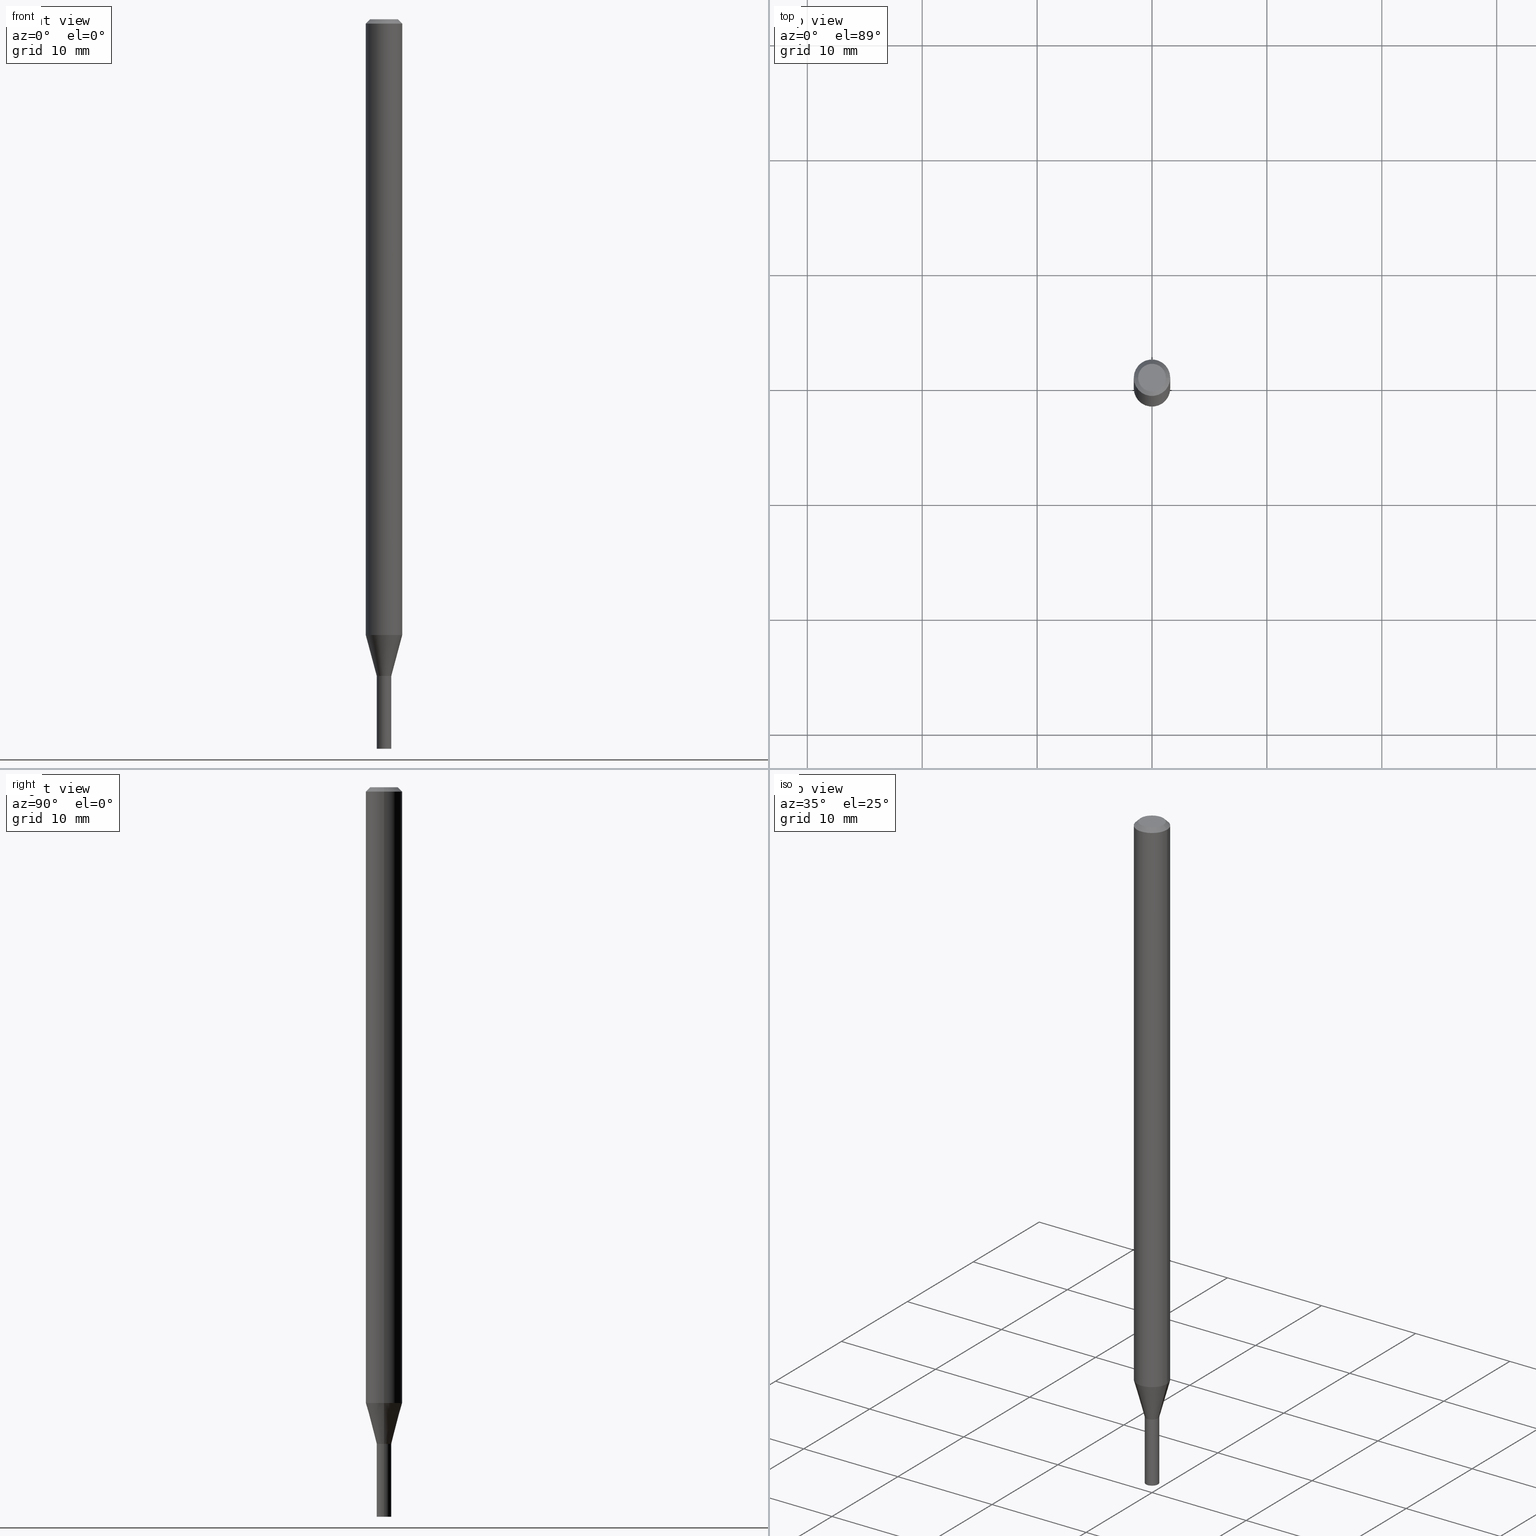
[diagram: canonical four-view strip — front | top / right | iso, engineering-drawing reading convention]
A machine part, canonical four-view strip (front | top / right | iso — engineering-drawing reading convention). The complete STEP part file that produces these views, byte-faithful:
ISO-10303-21;
HEADER;
FILE_DESCRIPTION (( 'STEP AP203' ),
    '1' );
FILE_NAME ('01237.STEP',
    '2024-03-20T00:23:48',
    ( '' ),
    ( '' ),
    'SwSTEP 2.0',
    'SolidWorks 2023',
    '' );
FILE_SCHEMA (( 'CONFIG_CONTROL_DESIGN' ));
ENDSEC;

DATA;
#1 = AXIS2_PLACEMENT_3D ( 'NONE', #237, #269, #163 ) ;
#2 = EDGE_LOOP ( 'NONE', ( #455, #438, #147, #79 ) ) ;
#3 = DIRECTION ( 'NONE',  ( 1.000000000000000000, -6.982962677686276966E-15, 0.000000000000000000 ) ) ;
#4 = PERSON_AND_ORGANIZATION ( #290, #232 ) ;
#5 = CARTESIAN_POINT ( 'NONE',  ( 3.316907271900976096E-16, 0.04749999999999999362, 2.977901162055994392E-16 ) ) ;
#6 = ORIENTED_EDGE ( 'NONE', *, *, #277, .T. ) ;
#7 = DIRECTION ( 'NONE',  ( -2.445468806185136597E-29, 3.491481338843145583E-15, 1.000000000000000000 ) ) ;
#8 = CIRCLE ( 'NONE', #353, 0.04749999999999999362 ) ;
#9 = EDGE_CURVE ( 'NONE', #179, #263, #150, .T. ) ;
#10 = ORIENTED_EDGE ( 'NONE', *, *, #114, .T. ) ;
#11 = AXIS2_PLACEMENT_3D ( 'NONE', #255, #287, #69 ) ;
#12 = CARTESIAN_POINT ( 'NONE',  ( 0.000000000000000000, 0.000000000000000000, 0.000000000000000000 ) ) ;
#13 = CARTESIAN_POINT ( 'NONE',  ( 5.502304813916557343E-29, -7.855833012397078448E-15, -2.250000000000000000 ) ) ;
#14 = EDGE_LOOP ( 'NONE', ( #49, #446 ) ) ;
#15 = CARTESIAN_POINT ( 'NONE',  ( 5.502304813916558464E-29, -7.855833012397078448E-15, -2.250000000000000444 ) ) ;
#16 = ORIENTED_EDGE ( 'NONE', *, *, #452, .F. ) ;
#17 = AXIS2_PLACEMENT_3D ( 'NONE', #302, #382, #234 ) ;
#18 = LOCAL_TIME ( 20, 23, 48.00000000000000000, #405 ) ;
#19 = DIRECTION ( 'NONE',  ( -2.445468806185136597E-29, 3.491481338843145583E-15, 1.000000000000000000 ) ) ;
#20 = EDGE_CURVE ( 'NONE', #242, #369, #213, .T. ) ;
#21 = ORIENTED_EDGE ( 'NONE', *, *, #457, .F. ) ;
#22 =( NAMED_UNIT ( * ) PLANE_ANGLE_UNIT ( ) SI_UNIT ( $, .RADIAN. ) );
#23 = DIRECTION ( 'NONE',  ( 1.000000000000000000, -6.982962677686262766E-15, 0.000000000000000000 ) ) ;
#24 = VERTEX_POINT ( 'NONE', #415 ) ;
#25 = DIRECTION ( 'NONE',  ( 0.2588190451025209615, 1.565188264969624926E-15, 0.9659258262890682012 ) ) ;
#26 = EDGE_CURVE ( 'NONE', #24, #416, #222, .T. ) ;
#27 = MANIFOLD_SOLID_BREP ( 'Body-Move/Copy2[1]', #91 ) ;
#28 = CARTESIAN_POINT ( 'NONE',  ( 0.000000000000000000, 0.000000000000000000, 0.000000000000000000 ) ) ;
#29 = FACE_OUTER_BOUND ( 'NONE', #294, .T. ) ;
#30 = DIRECTION ( 'NONE',  ( -2.445468806185136877E-29, 3.491481338843145188E-15, 1.000000000000000000 ) ) ;
#31 = AXIS2_PLACEMENT_3D ( 'NONE', #313, #456, #176 ) ;
#32 = CIRCLE ( 'NONE', #254, 0.06250000000000000000 ) ;
#33 = APPLICATION_PROTOCOL_DEFINITION ( 'international standard', 'config_control_design', 1994, #399 ) ;
#34 = ORIENTED_EDGE ( 'NONE', *, *, #137, .T. ) ;
#35 = DIRECTION ( 'NONE',  ( 1.000000000000000000, -6.982962677686266711E-15, 0.000000000000000000 ) ) ;
#36 = ADVANCED_FACE ( 'NONE', ( #160 ), #56, .T. ) ;
#37 = SECURITY_CLASSIFICATION_LEVEL ( 'unclassified' ) ;
#38 = CIRCLE ( 'NONE', #381, 0.06250000000000000000 ) ;
#39 = EDGE_LOOP ( 'NONE', ( #119, #354, #392, #186 ) ) ;
#40 = AXIS2_PLACEMENT_3D ( 'NONE', #426, #109, #249 ) ;
#41 = PERSON_AND_ORGANIZATION ( #290, #232 ) ;
#42 = ORIENTED_EDGE ( 'NONE', *, *, #305, .T. ) ;
#43 = PRODUCT_RELATED_PRODUCT_CATEGORY ( 'detail', '', ( #322 ) ) ;
#44 = AXIS2_PLACEMENT_3D ( 'NONE', #317, #210, #326 ) ;
#45 = DIRECTION ( 'NONE',  ( 1.000000000000000000, -6.982962677686272233E-15, 0.000000000000000000 ) ) ;
#46 = CIRCLE ( 'NONE', #344, 0.02500000000000019915 ) ;
#47 = PERSON_AND_ORGANIZATION_ROLE ( 'design_owner' ) ;
#48 = APPROVAL_PERSON_ORGANIZATION ( #368, #192, #265 ) ;
#49 = ORIENTED_EDGE ( 'NONE', *, *, #137, .F. ) ;
#50 = DIMENSIONAL_EXPONENTS ( 1.000000000000000000, 0.000000000000000000, 0.000000000000000000, 0.000000000000000000, 0.000000000000000000, 0.000000000000000000, 0.000000000000000000 ) ;
#51 = DIRECTION ( 'NONE',  ( -2.445468806185136877E-29, 3.491481338843145188E-15, 1.000000000000000000 ) ) ;
#52 = ORIENTED_EDGE ( 'NONE', *, *, #26, .T. ) ;
#53 = FACE_OUTER_BOUND ( 'NONE', #164, .T. ) ;
#54 = CC_DESIGN_PERSON_AND_ORGANIZATION_ASSIGNMENT ( #41, #118, ( #371 ) ) ;
#55 = FACE_OUTER_BOUND ( 'NONE', #178, .T. ) ;
#56 = CYLINDRICAL_SURFACE ( 'NONE', #146, 0.06250000000000000000 ) ;
#57 = CARTESIAN_POINT ( 'NONE',  ( -0.02500000000000019915, -7.676451587787630163E-15, -2.249500000000000277 ) ) ;
#58 = APPROVAL_DATE_TIME ( #374, #192 ) ;
#59 = PRODUCT_DEFINITION ( 'UNKNOWN', '', #371, #138 ) ;
#60 = DIRECTION ( 'NONE',  ( 1.000000000000000000, -6.982962677686254878E-15, 0.000000000000000000 ) ) ;
#61 = ORIENTED_EDGE ( 'NONE', *, *, #305, .F. ) ;
#62 = CONICAL_SURFACE ( 'NONE', #17, 0.02500000000000020609, 0.2617993877991496299 ) ;
#63 = DIRECTION ( 'NONE',  ( -0.2588190451025209615, 5.211531920934547097E-15, 0.9659258262890682012 ) ) ;
#64 = CARTESIAN_POINT ( 'NONE',  ( 5.502304813916557343E-29, -7.855833012397078448E-15, -2.250000000000000000 ) ) ;
#65 = FACE_OUTER_BOUND ( 'NONE', #205, .T. ) ;
#66 = FACE_OUTER_BOUND ( 'NONE', #347, .T. ) ;
#67 = DIRECTION ( 'NONE',  ( 1.000000000000000000, -6.982962677686254878E-15, 0.000000000000000000 ) ) ;
#68 = ORIENTED_EDGE ( 'NONE', *, *, #73, .T. ) ;
#69 = DIRECTION ( 'NONE',  ( 1.000000000000000000, -6.982962677686275388E-15, 0.000000000000000000 ) ) ;
#70 = AXIS2_PLACEMENT_3D ( 'NONE', #244, #284, #67 ) ;
#71 = DIRECTION ( 'NONE',  ( -2.445468806185136597E-29, 3.491481338843145583E-15, 1.000000000000000000 ) ) ;
#72 = ADVANCED_FACE ( 'NONE', ( #120 ), #62, .T. ) ;
#73 = EDGE_CURVE ( 'NONE', #416, #24, #8, .T. ) ;
#74 = ORIENTED_EDGE ( 'NONE', *, *, #441, .T. ) ;
#75 = VECTOR ( 'NONE', #202, 39.37007874015748143 ) ;
#76 = ADVANCED_FACE ( 'NONE', ( #348 ), #346, .T. ) ;
#77 = CALENDAR_DATE ( 2024, 19, 3 ) ;
#78 = ADVANCED_FACE ( 'NONE', ( #55 ), #412, .F. ) ;
#79 = ORIENTED_EDGE ( 'NONE', *, *, #409, .F. ) ;
#80 = DATE_TIME_ROLE ( 'creation_date' ) ;
#81 = ORIENTED_EDGE ( 'NONE', *, *, #225, .T. ) ;
#82 = DIRECTION ( 'NONE',  ( 2.445468806185136597E-29, -3.491481338843145583E-15, -1.000000000000000000 ) ) ;
#83 = CIRCLE ( 'NONE', #323, 0.02500000000000000139 ) ;
#84 = ORIENTED_EDGE ( 'NONE', *, *, #26, .F. ) ;
#85 = VERTEX_POINT ( 'NONE', #448 ) ;
#86 = EDGE_CURVE ( 'NONE', #369, #115, #127, .T. ) ;
#87 = DIRECTION ( 'NONE',  ( 1.000000000000000000, -6.982962677686265922E-15, 4.876176775795935793E-29 ) ) ;
#88 = DIRECTION ( 'NONE',  ( -2.445468806185136597E-29, 3.491481338843145583E-15, 1.000000000000000000 ) ) ;
#89 = DIRECTION ( 'NONE',  ( -2.445468806185136877E-29, 3.491481338843145188E-15, 1.000000000000000000 ) ) ;
#90 = PRODUCT_DEFINITION_SHAPE ( 'NONE', 'NONE',  #59 ) ;
#91 = CLOSED_SHELL ( 'NONE', ( #299, #122, #162, #431 ) ) ;
#92 = VECTOR ( 'NONE', #291, 39.37007874015748143 ) ;
#93 = FACE_OUTER_BOUND ( 'NONE', #218, .T. ) ;
#94 = ORIENTED_EDGE ( 'NONE', *, *, #214, .T. ) ;
#95 = DIRECTION ( 'NONE',  ( -2.445468806185136597E-29, 3.491481338843145583E-15, 1.000000000000000000 ) ) ;
#96 = EDGE_CURVE ( 'NONE', #263, #248, #442, .T. ) ;
#97 = FACE_OUTER_BOUND ( 'NONE', #420, .T. ) ;
#98 = EDGE_LOOP ( 'NONE', ( #61, #306 ) ) ;
#99 = DIRECTION ( 'NONE',  ( -2.445468806185136877E-29, 3.491481338843145188E-15, 1.000000000000000000 ) ) ;
#100 = AXIS2_PLACEMENT_3D ( 'NONE', #341, #158, #307 ) ;
#101 = CARTESIAN_POINT ( 'NONE',  ( 0.02500000000000020609, -8.030407079339236694E-15, -2.250000000000000000 ) ) ;
#102 = ORIENTED_EDGE ( 'NONE', *, *, #203, .T. ) ;
#103 = CARTESIAN_POINT ( 'NONE',  ( -0.02500000000000000139, 1.776356839400250563E-16, -1.229733772563726656E-30 ) ) ;
#104 = CARTESIAN_POINT ( 'NONE',  ( 5.502304813916558464E-29, -7.855833012397078448E-15, -2.250000000000000444 ) ) ;
#105 = CARTESIAN_POINT ( 'NONE',  ( 0.06250000000000000000, -4.811533449433679005E-16, -0.01499999999999999944 ) ) ;
#106 = CARTESIAN_POINT ( 'NONE',  ( 0.02500000000000020609, -8.030407079339236694E-15, -2.250000000000000000 ) ) ;
#107 = AXIS2_PLACEMENT_3D ( 'NONE', #247, #325, #131 ) ;
#108 = AXIS2_PLACEMENT_3D ( 'NONE', #28, #95, #200 ) ;
#109 = DIRECTION ( 'NONE',  ( 2.438088387897960049E-29, -3.491481338843145188E-15, -1.000000000000000000 ) ) ;
#110 = EDGE_CURVE ( 'NONE', #248, #236, #46, .T. ) ;
#111 = APPLICATION_CONTEXT ( 'configuration controlled 3d designs of mechanical parts and assemblies' ) ;
#112 = ORIENTED_EDGE ( 'NONE', *, *, #86, .F. ) ;
#113 = COORDINATED_UNIVERSAL_TIME_OFFSET ( 5, 0, .BEHIND. ) ;
#114 = EDGE_CURVE ( 'NONE', #135, #183, #129, .T. ) ;
#115 = VERTEX_POINT ( 'NONE', #439 ) ;
#116 = APPROVAL_ROLE ( '' ) ;
#117 = CC_DESIGN_PERSON_AND_ORGANIZATION_ASSIGNMENT ( #297, #260, ( #429 ) ) ;
#118 = PERSON_AND_ORGANIZATION_ROLE ( 'creator' ) ;
#119 = ORIENTED_EDGE ( 'NONE', *, *, #319, .F. ) ;
#120 = FACE_OUTER_BOUND ( 'NONE', #2, .T. ) ;
#121 = APPROVAL_STATUS ( 'not_yet_approved' ) ;
#122 = ADVANCED_FACE ( 'NONE', ( #410 ), #123, .F. ) ;
#123 = PLANE ( 'NONE',  #466 ) ;
#124 = CIRCLE ( 'NONE', #444, 0.02500000000000020609 ) ;
#125 = DIRECTION ( 'NONE',  ( 2.438088387897960049E-29, -3.491481338843145188E-15, -1.000000000000000000 ) ) ;
#126 = CARTESIAN_POINT ( 'NONE',  ( 0.02500000000000000139, -1.745740669421566924E-16, 1.219044193948984123E-30 ) ) ;
#127 = LINE ( 'NONE', #126, #428 ) ;
#128 = ADVANCED_FACE ( 'NONE', ( #264 ), #267, .T. ) ;
#129 = CIRCLE ( 'NONE', #389, 0.02450000000000000441 ) ;
#130 = AXIS2_PLACEMENT_3D ( 'NONE', #152, #256, #433 ) ;
#131 = DIRECTION ( 'NONE',  ( 1.000000000000000000, -6.982962677686262766E-15, 0.000000000000000000 ) ) ;
#132 = ORIENTED_EDGE ( 'NONE', *, *, #372, .F. ) ;
#133 = CARTESIAN_POINT ( 'NONE',  ( -0.02500000000000000139, -8.114632495812445702E-15, -2.250000000000000000 ) ) ;
#134 = CARTESIAN_POINT ( 'NONE',  ( 0.02500000000000019915, -8.028661338669814401E-15, -2.249500000000000277 ) ) ;
#135 = VERTEX_POINT ( 'NONE', #231 ) ;
#136 = LINE ( 'NONE', #103, #92 ) ;
#137 = EDGE_CURVE ( 'NONE', #183, #135, #285, .T. ) ;
#138 = DESIGN_CONTEXT ( 'detailed design', #111, 'design' ) ;
#139 = CARTESIAN_POINT ( 'NONE',  ( 5.502304813916558464E-29, -7.855833012397078448E-15, -2.250000000000000444 ) ) ;
#140 = VECTOR ( 'NONE', #25, 39.37007874015748143 ) ;
#141 = DIRECTION ( 'NONE',  ( -2.445468806185136597E-29, 3.491481338843145583E-15, 1.000000000000000000 ) ) ;
#142 = UNCERTAINTY_MEASURE_WITH_UNIT (LENGTH_MEASURE( 1.000000000000000082E-05 ), #358, 'distance_accuracy_value', 'NONE');
#143 = DIRECTION ( 'NONE',  ( 1.000000000000000000, -6.982962677686272233E-15, 0.000000000000000000 ) ) ;
#144 = DIRECTION ( 'NONE',  ( 0.7071067811865257013, -7.319954787623181892E-15, -0.7071067811865692221 ) ) ;
#145 = CC_DESIGN_DATE_AND_TIME_ASSIGNMENT ( #303, #80, ( #59 ) ) ;
#146 = AXIS2_PLACEMENT_3D ( 'NONE', #411, #309, #154 ) ;
#147 = ORIENTED_EDGE ( 'NONE', *, *, #225, .F. ) ;
#148 = APPROVAL_STATUS ( 'not_yet_approved' ) ;
#149 = CC_DESIGN_APPROVAL ( #235, ( #371 ) ) ;
#150 = CIRCLE ( 'NONE', #298, 0.02500000000000020609 ) ;
#151 = LOCAL_TIME ( 20, 23, 48.00000000000000000, #113 ) ;
#152 = CARTESIAN_POINT ( 'NONE',  ( 0.000000000000000000, 0.000000000000000000, 0.000000000000000000 ) ) ;
#153 = ORIENTED_EDGE ( 'NONE', *, *, #363, .T. ) ;
#154 = DIRECTION ( 'NONE',  ( 1.000000000000000000, -6.982962677686266711E-15, 4.876176775795935793E-29 ) ) ;
#155 = CALENDAR_DATE ( 2024, 19, 3 ) ;
#156 = DIRECTION ( 'NONE',  ( -2.445468806185136597E-29, 3.491481338843145583E-15, 1.000000000000000000 ) ) ;
#157 = EDGE_LOOP ( 'NONE', ( #74, #6 ) ) ;
#158 = DIRECTION ( 'NONE',  ( -2.445468806185136597E-29, 3.491481338843145583E-15, 1.000000000000000000 ) ) ;
#159 = AXIS2_PLACEMENT_3D ( 'NONE', #377, #373, #340 ) ;
#160 = FACE_OUTER_BOUND ( 'NONE', #39, .T. ) ;
#161 = CARTESIAN_POINT ( 'NONE',  ( 5.501082079513465662E-29, -7.854087271727656156E-15, -2.249500000000000277 ) ) ;
#162 = ADVANCED_FACE ( 'NONE', ( #53 ), #195, .T. ) ;
#163 = DIRECTION ( 'NONE',  ( 1.000000000000000000, -6.982962677686267499E-15, 4.852736867747366768E-29 ) ) ;
#164 = EDGE_LOOP ( 'NONE', ( #282, #308, #380, #208 ) ) ;
#165 = CARTESIAN_POINT ( 'NONE',  ( -0.02500000000000000139, -8.114632495812445702E-15, -2.500000000000000000 ) ) ;
#166 = VECTOR ( 'NONE', #144, 39.37007874015748854 ) ;
#167 = CARTESIAN_POINT ( 'NONE',  ( 0.02450000000000000441, -8.026915598000392109E-15, -2.250000000000000444 ) ) ;
#168 = ORIENTED_EDGE ( 'NONE', *, *, #96, .T. ) ;
#169 =( NAMED_UNIT ( * ) SI_UNIT ( $, .STERADIAN. ) SOLID_ANGLE_UNIT ( ) );
#170 = CARTESIAN_POINT ( 'NONE',  ( -0.06250000000000000000, -6.923104336912972739E-15, -2.110048094716168166 ) ) ;
#171 = VERTEX_POINT ( 'NONE', #391 ) ;
#172 = CARTESIAN_POINT ( 'NONE',  ( -0.06250000000000000000, 3.840629472727444916E-16, -0.01499999999999999944 ) ) ;
#173 = DIRECTION ( 'NONE',  ( -2.445468806185136597E-29, 3.491481338843145583E-15, 1.000000000000000000 ) ) ;
#174 = CONICAL_SURFACE ( 'NONE', #459, 0.02450000000000000441, 0.7853981633974697063 ) ;
#175 = VECTOR ( 'NONE', #289, 39.37007874015748143 ) ;
#176 = DIRECTION ( 'NONE',  ( 1.000000000000000000, -6.982962677686266711E-15, 4.876176775795935232E-29 ) ) ;
#177 = ADVANCED_FACE ( 'NONE', ( #93 ), #174, .T. ) ;
#178 = EDGE_LOOP ( 'NONE', ( #52, #68 ) ) ;
#179 = VERTEX_POINT ( 'NONE', #101 ) ;
#180 = LINE ( 'NONE', #246, #175 ) ;
#181 = EDGE_CURVE ( 'NONE', #24, #85, #350, .T. ) ;
#182 = COORDINATED_UNIVERSAL_TIME_OFFSET ( 5, 0, .BEHIND. ) ;
#183 = VERTEX_POINT ( 'NONE', #167 ) ;
#184 = APPROVAL_STATUS ( 'not_yet_approved' ) ;
#185 = EDGE_LOOP ( 'NONE', ( #266, #94, #432, #194 ) ) ;
#186 = ORIENTED_EDGE ( 'NONE', *, *, #203, .F. ) ;
#187 = LOCAL_TIME ( 20, 23, 48.00000000000000000, #430 ) ;
#188 = DIRECTION ( 'NONE',  ( 1.000000000000000000, -6.982962677686254878E-15, 0.000000000000000000 ) ) ;
#189 = CONICAL_SURFACE ( 'NONE', #449, 0.02450000000000000441, 0.7853981633974697063 ) ;
#190 = PERSON_AND_ORGANIZATION ( #290, #232 ) ;
#191 = ORIENTED_EDGE ( 'NONE', *, *, #319, .T. ) ;
#192 = APPROVAL ( #121, 'UNSPECIFIED' ) ;
#193 = CARTESIAN_POINT ( 'NONE',  ( 6.194428952736783458E-29, -8.613054816532157721E-15, -2.500000000000000000 ) ) ;
#194 = ORIENTED_EDGE ( 'NONE', *, *, #279, .F. ) ;
#195 = CYLINDRICAL_SURFACE ( 'NONE', #100, 0.02500000000000000139 ) ;
#196 = DIRECTION ( 'NONE',  ( 1.000000000000000000, -6.982962677686267499E-15, 4.852736867747366768E-29 ) ) ;
#197 =( GEOMETRIC_REPRESENTATION_CONTEXT ( 3 ) GLOBAL_UNCERTAINTY_ASSIGNED_CONTEXT ( ( #142 ) ) GLOBAL_UNIT_ASSIGNED_CONTEXT ( ( #358, #22, #169 ) ) REPRESENTATION_CONTEXT ( 'NONE', 'WORKASPACE' ) );
#198 = DIRECTION ( 'NONE',  ( -2.445468806185136597E-29, 3.491481338843145583E-15, 1.000000000000000000 ) ) ;
#199 = ORIENTED_EDGE ( 'NONE', *, *, #441, .F. ) ;
#200 = DIRECTION ( 'NONE',  ( 1.000000000000000000, -6.982962677686267499E-15, 4.876176775795936353E-29 ) ) ;
#201 = DIRECTION ( 'NONE',  ( 1.000000000000000000, -6.982962677686276966E-15, 0.000000000000000000 ) ) ;
#202 = DIRECTION ( 'NONE',  ( -2.445468806185136877E-29, 3.491481338843145188E-15, 1.000000000000000000 ) ) ;
#203 = EDGE_CURVE ( 'NONE', #85, #171, #314, .T. ) ;
#204 = VECTOR ( 'NONE', #51, 39.37007874015748143 ) ;
#205 = EDGE_LOOP ( 'NONE', ( #21, #10, #153, #386 ) ) ;
#206 = FACE_OUTER_BOUND ( 'NONE', #185, .T. ) ;
#207 = LINE ( 'NONE', #356, #345 ) ;
#208 = ORIENTED_EDGE ( 'NONE', *, *, #277, .F. ) ;
#209 = PLANE ( 'NONE',  #245 ) ;
#210 = DIRECTION ( 'NONE',  ( 2.445468806185136597E-29, -3.491481338843145583E-15, -1.000000000000000000 ) ) ;
#211 = DIRECTION ( 'NONE',  ( 1.000000000000000000, -6.982962677686275388E-15, 0.000000000000000000 ) ) ;
#212 = AXIS2_PLACEMENT_3D ( 'NONE', #355, #395, #252 ) ;
#213 = CIRCLE ( 'NONE', #422, 0.02500000000000000139 ) ;
#214 = EDGE_CURVE ( 'NONE', #263, #179, #124, .T. ) ;
#215 = AXIS2_PLACEMENT_3D ( 'NONE', #161, #384, #201 ) ;
#216 = CARTESIAN_POINT ( 'NONE',  ( 0.04749999999999999362, -4.035134999187561860E-16, 9.272709596013002351E-16 ) ) ;
#217 = ADVANCED_FACE ( 'NONE', ( #385 ), #209, .F. ) ;
#218 = EDGE_LOOP ( 'NONE', ( #34, #339, #132, #332 ) ) ;
#219 = PERSON_AND_ORGANIZATION_ROLE ( 'design_supplier' ) ;
#220 = CC_DESIGN_PERSON_AND_ORGANIZATION_ASSIGNMENT ( #4, #257, ( #59 ) ) ;
#221 = APPROVAL_DATE_TIME ( #437, #235 ) ;
#222 = CIRCLE ( 'NONE', #1, 0.04749999999999999362 ) ;
#223 = CIRCLE ( 'NONE', #435, 0.02500000000000000139 ) ;
#224 = MECHANICAL_CONTEXT ( 'NONE', #399, 'mechanical' ) ;
#225 = EDGE_CURVE ( 'NONE', #226, #261, #38, .T. ) ;
#226 = VERTEX_POINT ( 'NONE', #419 ) ;
#227 = DIRECTION ( 'NONE',  ( -2.445468806185136597E-29, 3.491481338843145583E-15, 1.000000000000000000 ) ) ;
#228 = CALENDAR_DATE ( 2024, 19, 3 ) ;
#229 = EDGE_LOOP ( 'NONE', ( #42, #349, #199, #112 ) ) ;
#230 = EDGE_CURVE ( 'NONE', #226, #171, #394, .T. ) ;
#231 = CARTESIAN_POINT ( 'NONE',  ( -0.02450000000000000441, -7.679100814961742153E-15, -2.250000000000000444 ) ) ;
#232 = ORGANIZATION ( 'UNSPECIFIED', 'UNSPECIFIED', '' ) ;
#233 = DIRECTION ( 'NONE',  ( -1.000000000000000000, 6.982962677686266711E-15, 0.000000000000000000 ) ) ;
#234 = DIRECTION ( 'NONE',  ( 1.000000000000000000, -6.982962677686275388E-15, 0.000000000000000000 ) ) ;
#235 = APPROVAL ( #184, 'UNSPECIFIED' ) ;
#236 = VERTEX_POINT ( 'NONE', #134 ) ;
#237 = CARTESIAN_POINT ( 'NONE',  ( -2.267612206586331395E-44, 3.237549251499107077E-30, 9.272709596012976713E-16 ) ) ;
#238 = CIRCLE ( 'NONE', #70, 0.02500000000000000139 ) ;
#239 = VECTOR ( 'NONE', #99, 39.37007874015748143 ) ;
#240 = ORIENTED_EDGE ( 'NONE', *, *, #452, .T. ) ;
#241 = DIRECTION ( 'NONE',  ( 1.000000000000000000, -6.982962677686266711E-15, 0.000000000000000000 ) ) ;
#242 = VERTEX_POINT ( 'NONE', #165 ) ;
#243 = CARTESIAN_POINT ( 'NONE',  ( 5.160056795178769095E-29, -7.367193546763035355E-15, -2.110048094716168166 ) ) ;
#244 = CARTESIAN_POINT ( 'NONE',  ( 5.502304813916557343E-29, -7.855833012397078448E-15, -2.250000000000000000 ) ) ;
#245 = AXIS2_PLACEMENT_3D ( 'NONE', #15, #318, #359 ) ;
#246 = CARTESIAN_POINT ( 'NONE',  ( -0.02450000000000000441, -7.681750042135854143E-15, -2.250000000000000444 ) ) ;
#247 = CARTESIAN_POINT ( 'NONE',  ( 5.160056795178769095E-29, -7.367193546763035355E-15, -2.110048094716168166 ) ) ;
#248 = VERTEX_POINT ( 'NONE', #57 ) ;
#249 = DIRECTION ( 'NONE',  ( -1.000000000000000000, 6.982962677686265922E-15, -4.876176775795935793E-29 ) ) ;
#250 = DIRECTION ( 'NONE',  ( -2.445468806185136597E-29, 3.491481338843145583E-15, 1.000000000000000000 ) ) ;
#251 = ADVANCED_FACE ( 'NONE', ( #97 ), #357, .F. ) ;
#252 = DIRECTION ( 'NONE',  ( 1.000000000000000000, -6.982962677686266711E-15, 4.876176775795935232E-29 ) ) ;
#253 = CONICAL_SURFACE ( 'NONE', #44, 0.06250000000000000000, 0.7853981633974175258 ) ;
#254 = AXIS2_PLACEMENT_3D ( 'NONE', #361, #71, #35 ) ;
#255 = CARTESIAN_POINT ( 'NONE',  ( 5.502304813916557343E-29, -7.855833012397078448E-15, -2.250000000000000000 ) ) ;
#256 = DIRECTION ( 'NONE',  ( 0.000000000000000000, 0.000000000000000000, 1.000000000000000000 ) ) ;
#257 = PERSON_AND_ORGANIZATION_ROLE ( 'creator' ) ;
#258 = VECTOR ( 'NONE', #281, 39.37007874015748854 ) ;
#259 = CC_DESIGN_SECURITY_CLASSIFICATION ( #429, ( #371 ) ) ;
#260 = PERSON_AND_ORGANIZATION_ROLE ( 'classification_officer' ) ;
#261 = VERTEX_POINT ( 'NONE', #170 ) ;
#262 = PERSON_AND_ORGANIZATION ( #290, #232 ) ;
#263 = VERTEX_POINT ( 'NONE', #352 ) ;
#264 = FACE_OUTER_BOUND ( 'NONE', #300, .T. ) ;
#265 = APPROVAL_ROLE ( '' ) ;
#266 = ORIENTED_EDGE ( 'NONE', *, *, #334, .F. ) ;
#267 = CONICAL_SURFACE ( 'NONE', #370, 0.06250000000000000000, 0.7853981633974175258 ) ;
#268 = DIRECTION ( 'NONE',  ( -2.438088387897960049E-29, 3.491481338843145188E-15, 1.000000000000000000 ) ) ;
#269 = DIRECTION ( 'NONE',  ( -2.445468806185136597E-29, 3.491481338843145583E-15, 1.000000000000000000 ) ) ;
#270 = CARTESIAN_POINT ( 'NONE',  ( 0.02500000000000000139, -8.903277414050021610E-15, -2.500000000000000000 ) ) ;
#271 = CARTESIAN_POINT ( 'NONE',  ( -0.02500000000000020262, 1.776356839400264861E-16, -1.229733772563736290E-30 ) ) ;
#272 = ADVANCED_BREP_SHAPE_REPRESENTATION ( '01237', ( #27, #464, #130 ), #197 ) ;
#273 = ORIENTED_EDGE ( 'NONE', *, *, #110, .T. ) ;
#274 = DIRECTION ( 'NONE',  ( 0.7071067811865626718, -2.468850131082415227E-15, 0.7071067811865323627 ) ) ;
#275 = CARTESIAN_POINT ( 'NONE',  ( 5.501082079513465662E-29, -7.854087271727656156E-15, -2.249500000000000277 ) ) ;
#276 = CC_DESIGN_APPROVAL ( #383, ( #59 ) ) ;
#277 = EDGE_CURVE ( 'NONE', #375, #115, #238, .T. ) ;
#278 = DIRECTION ( 'NONE',  ( -2.445468806185136597E-29, 3.491481338843145583E-15, 1.000000000000000000 ) ) ;
#279 = EDGE_CURVE ( 'NONE', #261, #226, #336, .T. ) ;
#280 = ORIENTED_EDGE ( 'NONE', *, *, #230, .F. ) ;
#281 = DIRECTION ( 'NONE',  ( -0.7071067811865257013, 2.468850131082028685E-15, -0.7071067811865692221 ) ) ;
#282 = ORIENTED_EDGE ( 'NONE', *, *, #406, .F. ) ;
#283 = LINE ( 'NONE', #105, #166 ) ;
#284 = DIRECTION ( 'NONE',  ( -2.445468806185136597E-29, 3.491481338843145583E-15, 1.000000000000000000 ) ) ;
#285 = CIRCLE ( 'NONE', #159, 0.02450000000000000441 ) ;
#286 = LINE ( 'NONE', #388, #75 ) ;
#287 = DIRECTION ( 'NONE',  ( -2.445468806185136597E-29, 3.491481338843145583E-15, 1.000000000000000000 ) ) ;
#288 = FACE_OUTER_BOUND ( 'NONE', #229, .T. ) ;
#289 = DIRECTION ( 'NONE',  ( -0.7071067811865626718, 7.493145998870409380E-15, 0.7071067811865323627 ) ) ;
#290 = PERSON ( 'UNSPECIFIED', 'UNSPECIFIED', 'UNSPECIFIED', ('UNSPECIFIED'), ('UNSPECIFIED'), ('UNSPECIFIED') ) ;
#291 = DIRECTION ( 'NONE',  ( -2.445468806185136877E-29, 3.491481338843145188E-15, 1.000000000000000000 ) ) ;
#292 = VECTOR ( 'NONE', #63, 39.37007874015748143 ) ;
#293 = ORIENTED_EDGE ( 'NONE', *, *, #436, .F. ) ;
#294 = EDGE_LOOP ( 'NONE', ( #404, #465, #401, #335 ) ) ;
#295 = APPLICATION_PROTOCOL_DEFINITION ( 'international standard', 'config_control_design', 1994, #111 ) ;
#296 = ADVANCED_FACE ( 'NONE', ( #65 ), #189, .T. ) ;
#297 = PERSON_AND_ORGANIZATION ( #290, #232 ) ;
#298 = AXIS2_PLACEMENT_3D ( 'NONE', #13, #88, #378 ) ;
#299 = ADVANCED_FACE ( 'NONE', ( #288 ), #417, .T. ) ;
#300 = EDGE_LOOP ( 'NONE', ( #293, #84, #328, #102 ) ) ;
#301 = DATE_AND_TIME ( #338, #360 ) ;
#302 = CARTESIAN_POINT ( 'NONE',  ( 5.502304813916557343E-29, -7.855833012397078448E-15, -2.250000000000000000 ) ) ;
#303 = DATE_AND_TIME ( #155, #187 ) ;
#304 = DIRECTION ( 'NONE',  ( 1.000000000000000000, -6.982962677686266711E-15, 4.876176775795935793E-29 ) ) ;
#305 = EDGE_CURVE ( 'NONE', #369, #242, #223, .T. ) ;
#306 = ORIENTED_EDGE ( 'NONE', *, *, #20, .F. ) ;
#307 = DIRECTION ( 'NONE',  ( 1.000000000000000000, -6.982962677686267499E-15, 4.876176775795936353E-29 ) ) ;
#308 = ORIENTED_EDGE ( 'NONE', *, *, #20, .T. ) ;
#309 = DIRECTION ( 'NONE',  ( -2.445468806185136597E-29, 3.491481338843145583E-15, 1.000000000000000000 ) ) ;
#310 = EDGE_LOOP ( 'NONE', ( #81, #191, #16, #280 ) ) ;
#311 = CARTESIAN_POINT ( 'NONE',  ( -2.267612206586331395E-44, 3.237549251499107077E-30, 9.272709596012976713E-16 ) ) ;
#312 = APPROVAL_PERSON_ORGANIZATION ( #262, #383, #116 ) ;
#313 = CARTESIAN_POINT ( 'NONE',  ( 0.000000000000000000, 0.000000000000000000, 0.000000000000000000 ) ) ;
#314 = CIRCLE ( 'NONE', #321, 0.06250000000000000000 ) ;
#315 = LINE ( 'NONE', #453, #292 ) ;
#316 = ORIENTED_EDGE ( 'NONE', *, *, #379, .F. ) ;
#317 = CARTESIAN_POINT ( 'NONE',  ( 3.668203209277705088E-31, -5.237222008264718399E-17, -0.01499999999999999944 ) ) ;
#318 = DIRECTION ( 'NONE',  ( -2.438088387897960049E-29, 3.491481338843145188E-15, 1.000000000000000000 ) ) ;
#319 = EDGE_CURVE ( 'NONE', #261, #85, #286, .T. ) ;
#320 = CARTESIAN_POINT ( 'NONE',  ( 3.668203209277705088E-31, -5.237222008264718399E-17, -0.01499999999999999944 ) ) ;
#321 = AXIS2_PLACEMENT_3D ( 'NONE', #320, #458, #241 ) ;
#322 = PRODUCT ( '01237', '01237', '', ( #224 ) ) ;
#323 = AXIS2_PLACEMENT_3D ( 'NONE', #64, #173, #397 ) ;
#324 = LINE ( 'NONE', #106, #140 ) ;
#325 = DIRECTION ( 'NONE',  ( -2.445468806185136597E-29, 3.491481338843145583E-15, 1.000000000000000000 ) ) ;
#326 = DIRECTION ( 'NONE',  ( -1.000000000000000000, 6.982962677686266711E-15, 0.000000000000000000 ) ) ;
#327 = LINE ( 'NONE', #424, #239 ) ;
#328 = ORIENTED_EDGE ( 'NONE', *, *, #181, .T. ) ;
#329 = CC_DESIGN_PERSON_AND_ORGANIZATION_ASSIGNMENT ( #190, #47, ( #322 ) ) ;
#330 = CALENDAR_DATE ( 2024, 19, 3 ) ;
#331 = PERSON_AND_ORGANIZATION ( #290, #232 ) ;
#332 = ORIENTED_EDGE ( 'NONE', *, *, #363, .F. ) ;
#333 = APPROVAL_ROLE ( '' ) ;
#334 = EDGE_CURVE ( 'NONE', #263, #261, #315, .T. ) ;
#335 = ORIENTED_EDGE ( 'NONE', *, *, #372, .T. ) ;
#336 = CIRCLE ( 'NONE', #107, 0.06250000000000000000 ) ;
#337 = DIRECTION ( 'NONE',  ( -2.445468806185136597E-29, 3.491481338843145583E-15, 1.000000000000000000 ) ) ;
#338 = CALENDAR_DATE ( 2024, 19, 3 ) ;
#339 = ORIENTED_EDGE ( 'NONE', *, *, #457, .T. ) ;
#340 = DIRECTION ( 'NONE',  ( 1.000000000000000000, -6.982962677686272233E-15, 0.000000000000000000 ) ) ;
#341 = CARTESIAN_POINT ( 'NONE',  ( 0.000000000000000000, 0.000000000000000000, 0.000000000000000000 ) ) ;
#342 = SHAPE_DEFINITION_REPRESENTATION ( #90, #272 ) ;
#343 = ORIENTED_EDGE ( 'NONE', *, *, #73, .F. ) ;
#344 = AXIS2_PLACEMENT_3D ( 'NONE', #275, #227, #3 ) ;
#345 = VECTOR ( 'NONE', #274, 39.37007874015748143 ) ;
#346 = CYLINDRICAL_SURFACE ( 'NONE', #450, 0.06250000000000000000 ) ;
#347 = EDGE_LOOP ( 'NONE', ( #343, #366, #240, #365 ) ) ;
#348 = FACE_OUTER_BOUND ( 'NONE', #310, .T. ) ;
#349 = ORIENTED_EDGE ( 'NONE', *, *, #406, .T. ) ;
#350 = LINE ( 'NONE', #172, #258 ) ;
#351 = ORIENTED_EDGE ( 'NONE', *, *, #214, .F. ) ;
#352 = CARTESIAN_POINT ( 'NONE',  ( -0.02500000000000020609, -7.300650832685011808E-15, -2.250000000000000000 ) ) ;
#353 = AXIS2_PLACEMENT_3D ( 'NONE', #311, #337, #196 ) ;
#354 = ORIENTED_EDGE ( 'NONE', *, *, #279, .T. ) ;
#355 = CARTESIAN_POINT ( 'NONE',  ( 0.000000000000000000, 0.000000000000000000, 0.000000000000000000 ) ) ;
#356 = CARTESIAN_POINT ( 'NONE',  ( 0.02450000000000000441, -8.026915598000392109E-15, -2.250000000000000444 ) ) ;
#357 = CYLINDRICAL_SURFACE ( 'NONE', #31, 0.02500000000000020262 ) ;
#358 =( CONVERSION_BASED_UNIT ( 'INCH', #427 ) LENGTH_UNIT ( ) NAMED_UNIT ( #50 ) );
#359 = DIRECTION ( 'NONE',  ( 1.000000000000000000, -6.982962677686265922E-15, 4.876176775795935793E-29 ) ) ;
#360 = LOCAL_TIME ( 20, 23, 48.00000000000000000, #400 ) ;
#361 = CARTESIAN_POINT ( 'NONE',  ( 3.668203209277705088E-31, -5.237222008264718399E-17, -0.01499999999999999944 ) ) ;
#362 = PLANE ( 'NONE',  #40 ) ;
#363 = EDGE_CURVE ( 'NONE', #183, #236, #207, .T. ) ;
#364 = DATE_AND_TIME ( #228, #18 ) ;
#365 = ORIENTED_EDGE ( 'NONE', *, *, #181, .F. ) ;
#366 = ORIENTED_EDGE ( 'NONE', *, *, #436, .T. ) ;
#367 = CARTESIAN_POINT ( 'NONE',  ( 6.113672015462842613E-29, -8.728703347107864943E-15, -2.500000000000000000 ) ) ;
#368 = PERSON_AND_ORGANIZATION ( #290, #232 ) ;
#369 = VERTEX_POINT ( 'NONE', #270 ) ;
#370 = AXIS2_PLACEMENT_3D ( 'NONE', #407, #82, #233 ) ;
#371 = PRODUCT_DEFINITION_FORMATION_WITH_SPECIFIED_SOURCE ( 'ANY', '', #322, .NOT_KNOWN. ) ;
#372 = EDGE_CURVE ( 'NONE', #236, #248, #396, .T. ) ;
#373 = DIRECTION ( 'NONE',  ( -2.445468806185136597E-29, 3.491481338843145583E-15, 1.000000000000000000 ) ) ;
#374 = DATE_AND_TIME ( #330, #414 ) ;
#375 = VERTEX_POINT ( 'NONE', #133 ) ;
#376 = ADVANCED_FACE ( 'NONE', ( #206 ), #413, .T. ) ;
#377 = CARTESIAN_POINT ( 'NONE',  ( 5.502304813916558464E-29, -7.855833012397078448E-15, -2.250000000000000444 ) ) ;
#378 = DIRECTION ( 'NONE',  ( 1.000000000000000000, -6.982962677686275388E-15, 0.000000000000000000 ) ) ;
#379 = EDGE_CURVE ( 'NONE', #179, #236, #327, .T. ) ;
#380 = ORIENTED_EDGE ( 'NONE', *, *, #86, .T. ) ;
#381 = AXIS2_PLACEMENT_3D ( 'NONE', #243, #278, #23 ) ;
#382 = DIRECTION ( 'NONE',  ( -2.445468806185136597E-29, 3.491481338843145583E-15, 1.000000000000000000 ) ) ;
#383 = APPROVAL ( #148, 'UNSPECIFIED' ) ;
#384 = DIRECTION ( 'NONE',  ( -2.445468806185136597E-29, 3.491481338843145583E-15, 1.000000000000000000 ) ) ;
#385 = FACE_OUTER_BOUND ( 'NONE', #14, .T. ) ;
#386 = ORIENTED_EDGE ( 'NONE', *, *, #110, .F. ) ;
#387 = CARTESIAN_POINT ( 'NONE',  ( 6.113672015462842613E-29, -8.728703347107864943E-15, -2.500000000000000000 ) ) ;
#388 = CARTESIAN_POINT ( 'NONE',  ( -0.06250000000000000000, 4.440892098500626162E-16, -3.074334431409316114E-30 ) ) ;
#389 = AXIS2_PLACEMENT_3D ( 'NONE', #445, #156, #45 ) ;
#390 =( LENGTH_UNIT ( ) NAMED_UNIT ( * ) SI_UNIT ( $, .METRE. ) );
#391 = CARTESIAN_POINT ( 'NONE',  ( 0.06250000000000000000, -4.888073874380388472E-16, -0.01499999999999999944 ) ) ;
#392 = ORIENTED_EDGE ( 'NONE', *, *, #230, .T. ) ;
#393 = CYLINDRICAL_SURFACE ( 'NONE', #212, 0.02500000000000020262 ) ;
#394 = LINE ( 'NONE', #421, #434 ) ;
#395 = DIRECTION ( 'NONE',  ( -2.445468806185136597E-29, 3.491481338843145583E-15, 1.000000000000000000 ) ) ;
#396 = CIRCLE ( 'NONE', #215, 0.02500000000000019915 ) ;
#397 = DIRECTION ( 'NONE',  ( 1.000000000000000000, -6.982962677686254878E-15, 0.000000000000000000 ) ) ;
#398 = CC_DESIGN_DATE_AND_TIME_ASSIGNMENT ( #364, #403, ( #429 ) ) ;
#399 = APPLICATION_CONTEXT ( 'configuration controlled 3d designs of mechanical parts and assemblies' ) ;
#400 = COORDINATED_UNIVERSAL_TIME_OFFSET ( 5, 0, .BEHIND. ) ;
#401 = ORIENTED_EDGE ( 'NONE', *, *, #379, .T. ) ;
#402 = CLOSED_SHELL ( 'NONE', ( #251, #177, #418, #76, #72, #376, #36, #128, #78, #217, #296, #454 ) ) ;
#403 = DATE_TIME_ROLE ( 'classification_date' ) ;
#404 = ORIENTED_EDGE ( 'NONE', *, *, #96, .F. ) ;
#405 = COORDINATED_UNIVERSAL_TIME_OFFSET ( 5, 0, .BEHIND. ) ;
#406 = EDGE_CURVE ( 'NONE', #242, #375, #136, .T. ) ;
#407 = CARTESIAN_POINT ( 'NONE',  ( 3.668203209277705088E-31, -5.237222008264718399E-17, -0.01499999999999999944 ) ) ;
#408 = APPROVAL_DATE_TIME ( #301, #383 ) ;
#409 = EDGE_CURVE ( 'NONE', #179, #226, #324, .T. ) ;
#410 = FACE_OUTER_BOUND ( 'NONE', #98, .T. ) ;
#411 = CARTESIAN_POINT ( 'NONE',  ( 0.000000000000000000, 0.000000000000000000, 0.000000000000000000 ) ) ;
#412 = PLANE ( 'NONE',  #443 ) ;
#413 = CONICAL_SURFACE ( 'NONE', #11, 0.02500000000000020609, 0.2617993877991496299 ) ;
#414 = LOCAL_TIME ( 20, 23, 48.00000000000000000, #182 ) ;
#415 = CARTESIAN_POINT ( 'NONE',  ( -0.04749999999999999362, 3.578768372314226776E-16, 9.272709596012951076E-16 ) ) ;
#416 = VERTEX_POINT ( 'NONE', #216 ) ;
#417 = CYLINDRICAL_SURFACE ( 'NONE', #108, 0.02500000000000000139 ) ;
#418 = ADVANCED_FACE ( 'NONE', ( #66 ), #253, .T. ) ;
#419 = CARTESIAN_POINT ( 'NONE',  ( 0.06250000000000000000, -7.803628714118427025E-15, -2.110048094716168166 ) ) ;
#420 = EDGE_LOOP ( 'NONE', ( #351, #168, #273, #316 ) ) ;
#421 = CARTESIAN_POINT ( 'NONE',  ( 0.06250000000000000000, -4.364351673553916694E-16, 3.047610484872459871E-30 ) ) ;
#422 = AXIS2_PLACEMENT_3D ( 'NONE', #367, #198, #188 ) ;
#423 = CC_DESIGN_APPROVAL ( #192, ( #429 ) ) ;
#424 = CARTESIAN_POINT ( 'NONE',  ( 0.02500000000000020262, -1.745740669421580729E-16, 1.219044193948993757E-30 ) ) ;
#425 = DIRECTION ( 'NONE',  ( -2.445468806185136597E-29, 3.491481338843145583E-15, 1.000000000000000000 ) ) ;
#426 = CARTESIAN_POINT ( 'NONE',  ( 1.745740669422116662E-16, 0.02499999999999214656, -2.250000000000000000 ) ) ;
#427 = LENGTH_MEASURE_WITH_UNIT ( LENGTH_MEASURE( 0.02539999999999999897 ), #390 );
#428 = VECTOR ( 'NONE', #89, 39.37007874015748143 ) ;
#429 = SECURITY_CLASSIFICATION ( '', '', #37 ) ;
#430 = COORDINATED_UNIVERSAL_TIME_OFFSET ( 5, 0, .BEHIND. ) ;
#431 = ADVANCED_FACE ( 'NONE', ( #463 ), #362, .F. ) ;
#432 = ORIENTED_EDGE ( 'NONE', *, *, #409, .T. ) ;
#433 = DIRECTION ( 'NONE',  ( 1.000000000000000000, 0.000000000000000000, 0.000000000000000000 ) ) ;
#434 = VECTOR ( 'NONE', #30, 39.37007874015748143 ) ;
#435 = AXIS2_PLACEMENT_3D ( 'NONE', #387, #141, #60 ) ;
#436 = EDGE_CURVE ( 'NONE', #416, #171, #283, .T. ) ;
#437 = DATE_AND_TIME ( #77, #151 ) ;
#438 = ORIENTED_EDGE ( 'NONE', *, *, #334, .T. ) ;
#439 = CARTESIAN_POINT ( 'NONE',  ( 0.02500000000000000139, -8.030407079339233538E-15, -2.250000000000000000 ) ) ;
#440 = PERSON_AND_ORGANIZATION ( #290, #232 ) ;
#441 = EDGE_CURVE ( 'NONE', #115, #375, #83, .T. ) ;
#442 = LINE ( 'NONE', #271, #204 ) ;
#443 = AXIS2_PLACEMENT_3D ( 'NONE', #5, #125, #447 ) ;
#444 = AXIS2_PLACEMENT_3D ( 'NONE', #461, #250, #211 ) ;
#445 = CARTESIAN_POINT ( 'NONE',  ( 5.502304813916558464E-29, -7.855833012397078448E-15, -2.250000000000000444 ) ) ;
#446 = ORIENTED_EDGE ( 'NONE', *, *, #114, .F. ) ;
#447 = DIRECTION ( 'NONE',  ( -1.000000000000000000, 6.982962677686265922E-15, -4.876176775795935793E-29 ) ) ;
#448 = CARTESIAN_POINT ( 'NONE',  ( -0.06250000000000000000, -3.265693673572778798E-15, -0.01499999999999999944 ) ) ;
#449 = AXIS2_PLACEMENT_3D ( 'NONE', #139, #19, #143 ) ;
#450 = AXIS2_PLACEMENT_3D ( 'NONE', #12, #7, #304 ) ;
#451 = DIRECTION ( 'NONE',  ( 1.000000000000000000, -6.982962677686272233E-15, 0.000000000000000000 ) ) ;
#452 = EDGE_CURVE ( 'NONE', #171, #85, #32, .T. ) ;
#453 = CARTESIAN_POINT ( 'NONE',  ( -0.02500000000000020609, -7.678197328457052455E-15, -2.250000000000000000 ) ) ;
#454 = ADVANCED_FACE ( 'NONE', ( #29 ), #393, .F. ) ;
#455 = ORIENTED_EDGE ( 'NONE', *, *, #9, .T. ) ;
#456 = DIRECTION ( 'NONE',  ( -2.445468806185136597E-29, 3.491481338843145583E-15, 1.000000000000000000 ) ) ;
#457 = EDGE_CURVE ( 'NONE', #135, #248, #180, .T. ) ;
#458 = DIRECTION ( 'NONE',  ( -2.445468806185136597E-29, 3.491481338843145583E-15, 1.000000000000000000 ) ) ;
#459 = AXIS2_PLACEMENT_3D ( 'NONE', #104, #425, #451 ) ;
#460 = APPROVAL_PERSON_ORGANIZATION ( #440, #235, #333 ) ;
#461 = CARTESIAN_POINT ( 'NONE',  ( 5.502304813916557343E-29, -7.855833012397078448E-15, -2.250000000000000000 ) ) ;
#462 = CC_DESIGN_PERSON_AND_ORGANIZATION_ASSIGNMENT ( #331, #219, ( #371 ) ) ;
#463 = FACE_OUTER_BOUND ( 'NONE', #157, .T. ) ;
#464 = MANIFOLD_SOLID_BREP ( 'Body-Move/Copy2[2]', #402 ) ;
#465 = ORIENTED_EDGE ( 'NONE', *, *, #9, .F. ) ;
#466 = AXIS2_PLACEMENT_3D ( 'NONE', #193, #268, #87 ) ;
ENDSEC;
END-ISO-10303-21;
